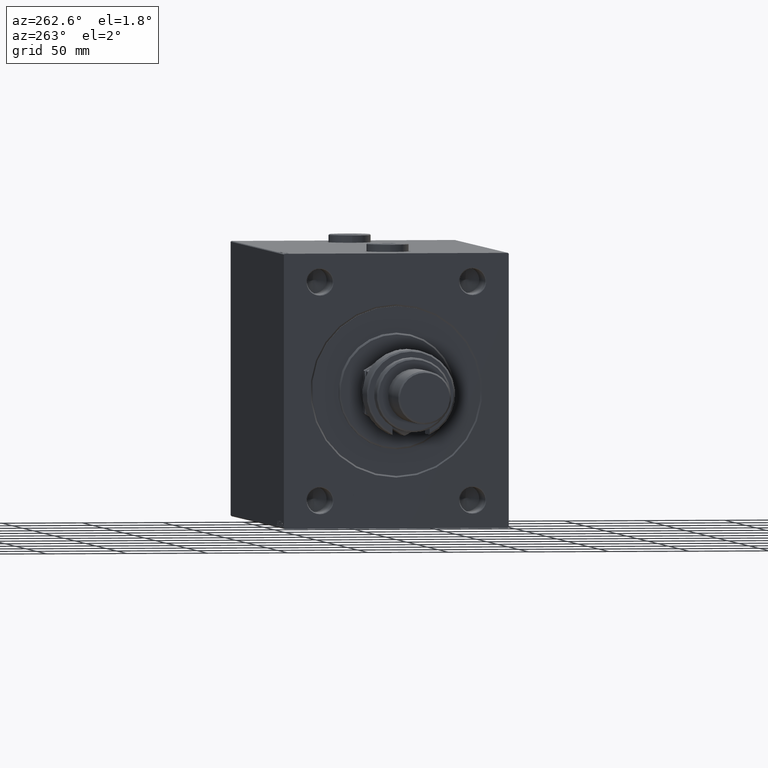
[diagram: clean part render]
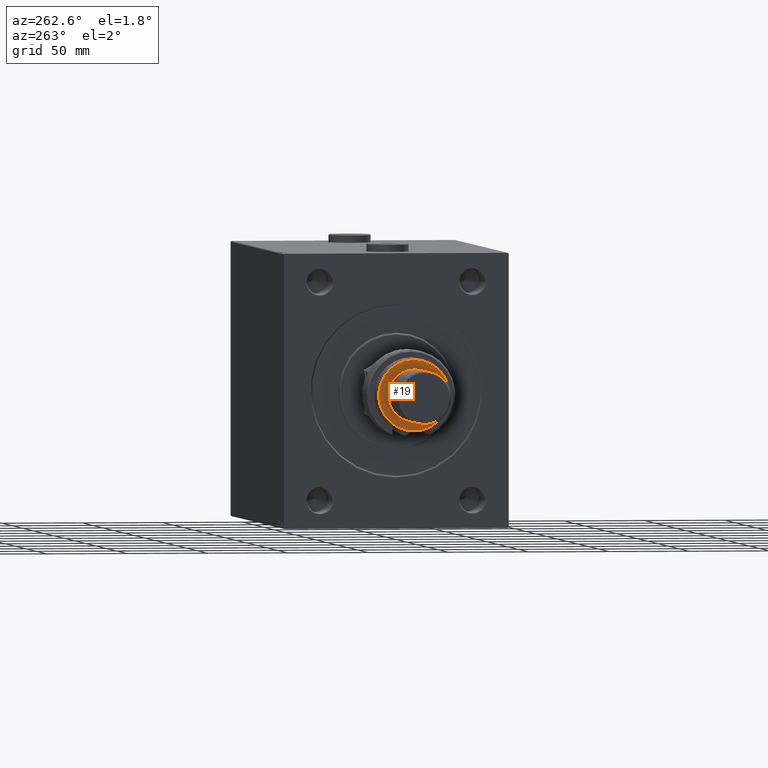
[diagram: same view with one face highlighted and labeled with its STEP entity id]
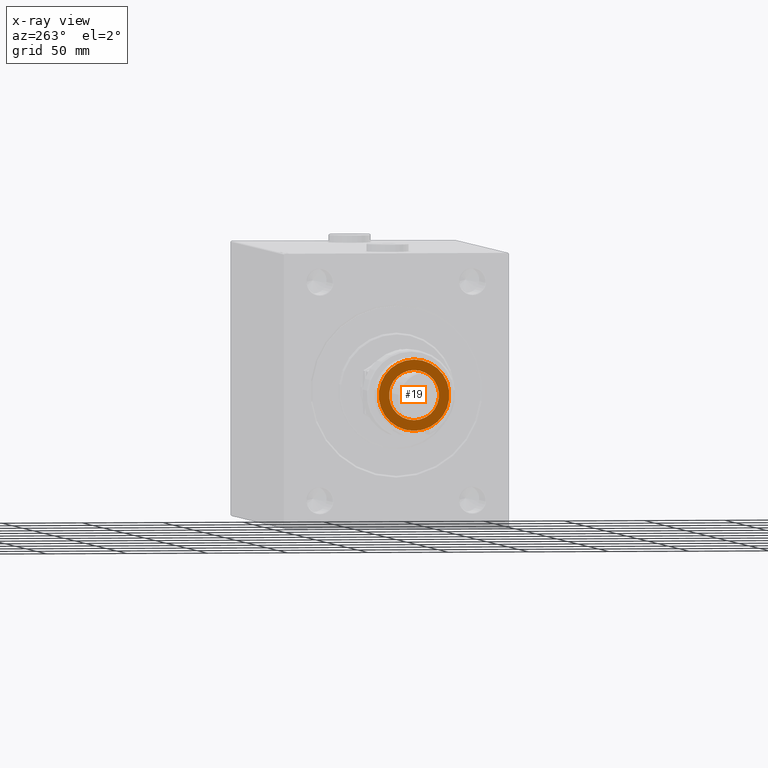
[diagram: x-ray of the same camera — body ghosted, the highlighted face saturated]
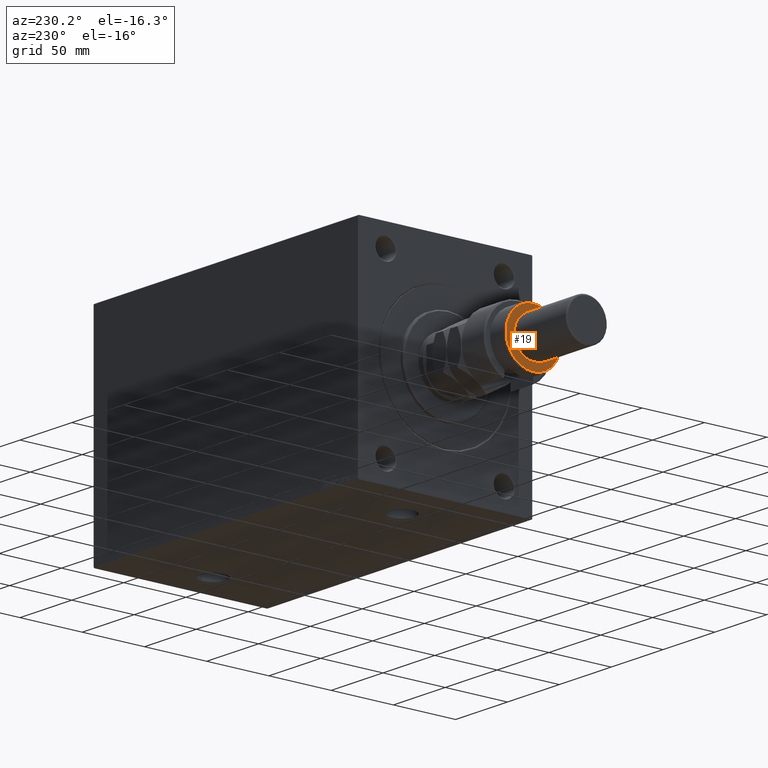
[diagram: same view with one face highlighted and labeled with its STEP entity id]
A machine part, auxiliary view. The second image highlights one B-rep face of the part: STEP entity #19.
The next image is the same camera in x-ray: the body ghosted, the highlighted face saturated — about 0% of this face is hidden behind the body in this view.
A second angle (auxiliary view) of the same face is appended — the face is thin or edge-on in the first view.
In plain terms, the highlighted planar face has unit normal (-1, 0, 0).
Its self-contained STEP definition (entity closure, byte-faithful):
#19 = ADVANCED_FACE ( 'NONE', ( #24936, #36966 ), #25423, .T. ) ;
#1747 = EDGE_CURVE ( 'NONE', #45160, #26558, #41711, .T. ) ;
#2618 = DIRECTION ( 'NONE',  ( 1.000000000000000000, 0.000000000000000000, 0.000000000000000000 ) ) ;
#3161 = DIRECTION ( 'NONE',  ( 0.000000000000000000, 0.000000000000000000, 1.000000000000000000 ) ) ;
#4473 = DIRECTION ( 'NONE',  ( 0.000000000000000000, 0.000000000000000000, 1.000000000000000000 ) ) ;
#4908 = CARTESIAN_POINT ( 'NONE',  ( -15.50000000000000000, 0.000000000000000000, 37.00000000000000000 ) ) ;
#5934 = AXIS2_PLACEMENT_3D ( 'NONE', #21847, #3161, #25283 ) ;
#6328 = EDGE_LOOP ( 'NONE', ( #35224, #40169 ) ) ;
#6760 = ORIENTED_EDGE ( 'NONE', *, *, #15017, .T. ) ;
#9347 = AXIS2_PLACEMENT_3D ( 'NONE', #30994, #4473, #19456 ) ;
#10274 = AXIS2_PLACEMENT_3D ( 'NONE', #47810, #36493, #29346 ) ;
#11078 = CARTESIAN_POINT ( 'NONE',  ( -22.00000000000003197, 0.000000000000000000, 37.00000000000000000 ) ) ;
#13468 = AXIS2_PLACEMENT_3D ( 'NONE', #25853, #40605, #47767 ) ;
#14202 = AXIS2_PLACEMENT_3D ( 'NONE', #21302, #36042, #2618 ) ;
#15017 = EDGE_CURVE ( 'NONE', #26558, #45160, #45192, .T. ) ;
#16393 = CIRCLE ( 'NONE', #9347, 15.50000000000000000 ) ;
#19456 = DIRECTION ( 'NONE',  ( 1.000000000000000000, 0.000000000000000000, 0.000000000000000000 ) ) ;
#20597 = EDGE_LOOP ( 'NONE', ( #33035, #6760 ) ) ;
#21302 = CARTESIAN_POINT ( 'NONE',  ( 0.000000000000000000, 0.000000000000000000, 37.00000000000000000 ) ) ;
#21847 = CARTESIAN_POINT ( 'NONE',  ( 0.000000000000000000, 0.000000000000000000, 37.00000000000000000 ) ) ;
#24936 = FACE_OUTER_BOUND ( 'NONE', #20597, .T. ) ;
#25283 = DIRECTION ( 'NONE',  ( 1.000000000000000000, 0.000000000000000000, 0.000000000000000000 ) ) ;
#25423 = PLANE ( 'NONE',  #10274 ) ;
#25853 = CARTESIAN_POINT ( 'NONE',  ( 0.000000000000000000, 0.000000000000000000, 37.00000000000000000 ) ) ;
#26558 = VERTEX_POINT ( 'NONE', #44980 ) ;
#26708 = VERTEX_POINT ( 'NONE', #4908 ) ;
#29346 = DIRECTION ( 'NONE',  ( 1.000000000000000000, 0.000000000000000000, -0.000000000000000000 ) ) ;
#30994 = CARTESIAN_POINT ( 'NONE',  ( 0.000000000000000000, 0.000000000000000000, 37.00000000000000000 ) ) ;
#31477 = CIRCLE ( 'NONE', #14202, 15.50000000000000000 ) ;
#33035 = ORIENTED_EDGE ( 'NONE', *, *, #1747, .T. ) ;
#34656 = EDGE_CURVE ( 'NONE', #44618, #26708, #16393, .T. ) ;
#35224 = ORIENTED_EDGE ( 'NONE', *, *, #43352, .F. ) ;
#36042 = DIRECTION ( 'NONE',  ( 0.000000000000000000, 0.000000000000000000, 1.000000000000000000 ) ) ;
#36493 = DIRECTION ( 'NONE',  ( 0.000000000000000000, 0.000000000000000000, 1.000000000000000000 ) ) ;
#36966 = FACE_BOUND ( 'NONE', #6328, .T. ) ;
#40169 = ORIENTED_EDGE ( 'NONE', *, *, #34656, .F. ) ;
#40605 = DIRECTION ( 'NONE',  ( 0.000000000000000000, 0.000000000000000000, 1.000000000000000000 ) ) ;
#41711 = CIRCLE ( 'NONE', #13468, 22.00000000000003197 ) ;
#43352 = EDGE_CURVE ( 'NONE', #26708, #44618, #31477, .T. ) ;
#44618 = VERTEX_POINT ( 'NONE', #45604 ) ;
#44980 = CARTESIAN_POINT ( 'NONE',  ( 22.00000000000003197, 2.755455298081546750E-15, 37.00000000000000000 ) ) ;
#45160 = VERTEX_POINT ( 'NONE', #11078 ) ;
#45192 = CIRCLE ( 'NONE', #5934, 22.00000000000003197 ) ;
#45604 = CARTESIAN_POINT ( 'NONE',  ( 15.50000000000000000, 1.898202538678397557E-15, 37.00000000000000000 ) ) ;
#47767 = DIRECTION ( 'NONE',  ( 1.000000000000000000, 0.000000000000000000, 0.000000000000000000 ) ) ;
#47810 = CARTESIAN_POINT ( 'NONE',  ( 0.000000000000000000, 0.000000000000000000, 37.00000000000000000 ) ) ;